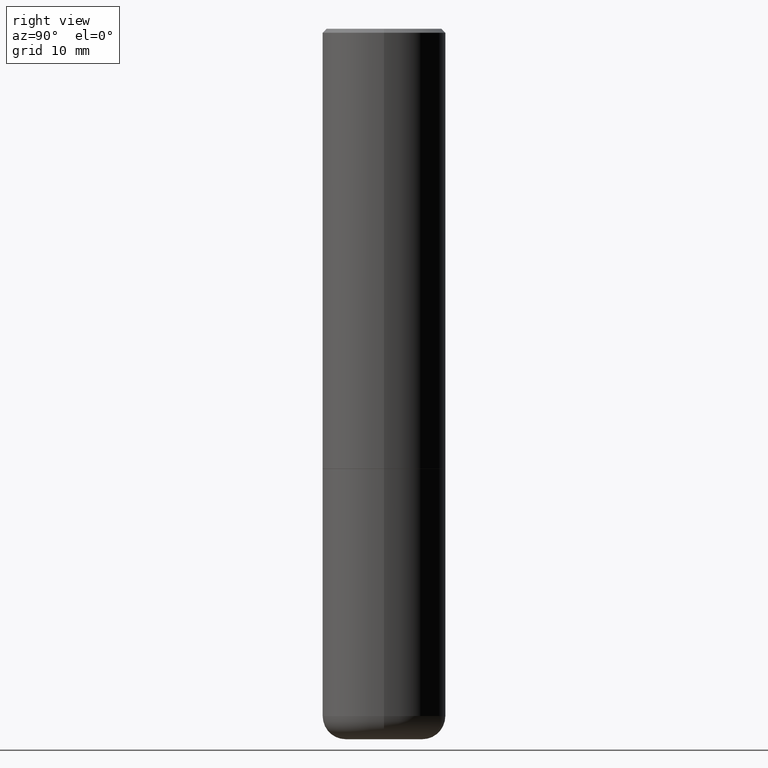
[diagram: clean part render]
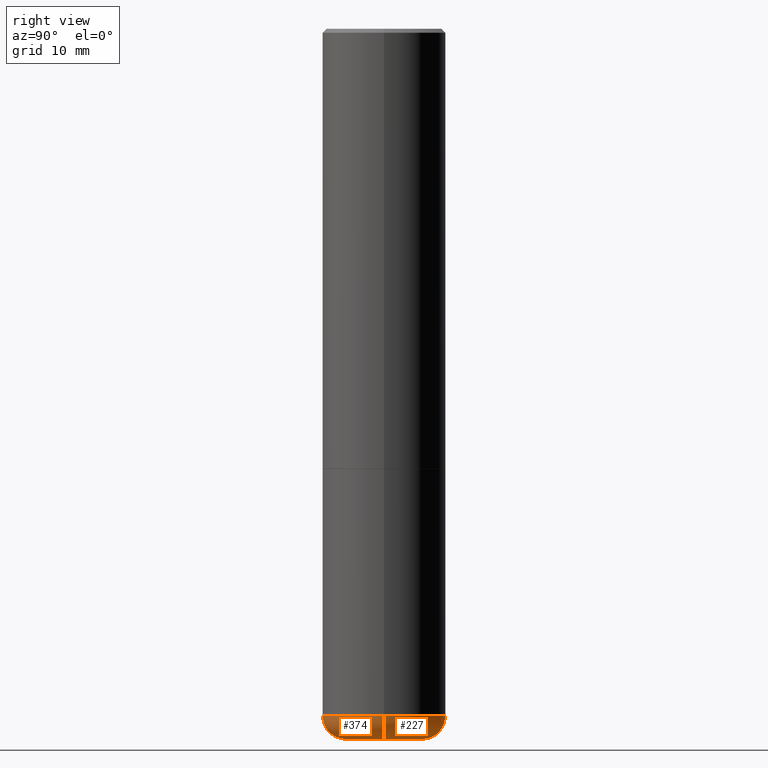
[diagram: same view with one multi-face feature highlighted, each face labeled with its STEP entity id]
A machine part, right view. The highlighted faces form ONE feature: a constant-radius fillet chain: 2 tangent blend faces with common blend radius 2.9997 mm. The faces share edges in the B-rep.
Their STEP definitions:
[1] entity #227 (Torus):
#9 = DIRECTION ( 'NONE',  ( -2.445468806185136597E-29, 3.491481338843145583E-15, 1.000000000000000000 ) ) ;
#27 = CIRCLE ( 'NONE', #74, 0.1180999999999997191 ) ;
#42 = EDGE_CURVE ( 'NONE', #141, #104, #27, .T. ) ;
#43 = DIRECTION ( 'NONE',  ( 1.000000000000000000, -6.982962677686263555E-15, 0.000000000000000000 ) ) ;
#44 = DIRECTION ( 'NONE',  ( -1.000000000000000000, 7.105427357601005014E-15, 0.000000000000000000 ) ) ;
#53 = DIRECTION ( 'NONE',  ( 1.000000000000000000, -6.982962677686273021E-15, 0.000000000000000000 ) ) ;
#74 = AXIS2_PLACEMENT_3D ( 'NONE', #341, #334, #53 ) ;
#77 = DIRECTION ( 'NONE',  ( -2.445468806185136597E-29, 3.491481338843145583E-15, 1.000000000000000000 ) ) ;
#82 = ORIENTED_EDGE ( 'NONE', *, *, #249, .F. ) ;
#96 = CARTESIAN_POINT ( 'NONE',  ( 8.857488016002563354E-29, -1.264614540928987041E-14, -3.621999999999999442 ) ) ;
#104 = VERTEX_POINT ( 'NONE', #126 ) ;
#126 = CARTESIAN_POINT ( 'NONE',  ( 0.3149499999999998967, -1.443308555850978615E-14, -3.503899999999999793 ) ) ;
#127 = AXIS2_PLACEMENT_3D ( 'NONE', #172, #77, #282 ) ;
#129 = CARTESIAN_POINT ( 'NONE',  ( -0.3149499999999998967, -9.995947116896063452E-15, -3.503899999999999793 ) ) ;
#141 = VERTEX_POINT ( 'NONE', #342 ) ;
#142 = DIRECTION ( 'NONE',  ( 7.105427357601001859E-15, 1.000000000000000000, -3.491481338843145583E-15 ) ) ;
#172 = CARTESIAN_POINT ( 'NONE',  ( 8.568678149992099474E-29, -1.223380146317249786E-14, -3.503899999999999793 ) ) ;
#191 = CIRCLE ( 'NONE', #256, 0.1968500000000000250 ) ;
#206 = VERTEX_POINT ( 'NONE', #129 ) ;
#208 = ORIENTED_EDGE ( 'NONE', *, *, #365, .T. ) ;
#214 = EDGE_CURVE ( 'NONE', #141, #412, #191, .T. ) ;
#227 = ADVANCED_FACE ( 'NONE', ( #317 ), #397, .T. ) ;
#249 = EDGE_CURVE ( 'NONE', #104, #206, #318, .T. ) ;
#250 = CIRCLE ( 'NONE', #402, 0.1180999999999997191 ) ;
#253 = CARTESIAN_POINT ( 'NONE',  ( 8.568678149992099474E-29, -1.223380146317249786E-14, -3.503899999999999793 ) ) ;
#256 = AXIS2_PLACEMENT_3D ( 'NONE', #96, #399, #319 ) ;
#263 = CARTESIAN_POINT ( 'NONE',  ( -0.1968500000000000250, -1.062169457542108764E-14, -3.621999999999999442 ) ) ;
#282 = DIRECTION ( 'NONE',  ( 1.000000000000000000, -6.982962677686269866E-15, 4.883557194083114022E-29 ) ) ;
#298 = ORIENTED_EDGE ( 'NONE', *, *, #42, .F. ) ;
#317 = FACE_OUTER_BOUND ( 'NONE', #383, .T. ) ;
#318 = CIRCLE ( 'NONE', #344, 0.3149500000000000077 ) ;
#319 = DIRECTION ( 'NONE',  ( 1.000000000000000000, -6.982962677686267499E-15, 0.000000000000000000 ) ) ;
#332 = CARTESIAN_POINT ( 'NONE',  ( -0.1968500000000000250, -1.083509808782873928E-14, -3.503899999999999793 ) ) ;
#334 = DIRECTION ( 'NONE',  ( -6.982962677686266711E-15, -1.000000000000000000, 3.491481338843145583E-15 ) ) ;
#341 = CARTESIAN_POINT ( 'NONE',  ( 0.1968500000000000250, -1.360839766627503947E-14, -3.503899999999999793 ) ) ;
#342 = CARTESIAN_POINT ( 'NONE',  ( 0.1968500000000000250, -1.402074161239241202E-14, -3.621999999999999442 ) ) ;
#344 = AXIS2_PLACEMENT_3D ( 'NONE', #253, #9, #43 ) ;
#365 = EDGE_CURVE ( 'NONE', #412, #206, #250, .T. ) ;
#383 = EDGE_LOOP ( 'NONE', ( #407, #208, #82, #298 ) ) ;
#397 = TOROIDAL_SURFACE ( 'NONE', #127, 0.1968500000000000250, 0.1180999999999997468 ) ;
#399 = DIRECTION ( 'NONE',  ( -2.445468806185136597E-29, 3.491481338843145583E-15, 1.000000000000000000 ) ) ;
#402 = AXIS2_PLACEMENT_3D ( 'NONE', #332, #142, #44 ) ;
#407 = ORIENTED_EDGE ( 'NONE', *, *, #214, .T. ) ;
#412 = VERTEX_POINT ( 'NONE', #263 ) ;
[2] entity #374 (Torus):
#21 = DIRECTION ( 'NONE',  ( 1.000000000000000000, -6.982962677686267499E-15, 0.000000000000000000 ) ) ;
#27 = CIRCLE ( 'NONE', #74, 0.1180999999999997191 ) ;
#35 = CIRCLE ( 'NONE', #261, 0.1968500000000000250 ) ;
#42 = EDGE_CURVE ( 'NONE', #141, #104, #27, .T. ) ;
#44 = DIRECTION ( 'NONE',  ( -1.000000000000000000, 7.105427357601005014E-15, 0.000000000000000000 ) ) ;
#51 = DIRECTION ( 'NONE',  ( -2.445468806185136597E-29, 3.491481338843145583E-15, 1.000000000000000000 ) ) ;
#52 = ORIENTED_EDGE ( 'NONE', *, *, #42, .T. ) ;
#53 = DIRECTION ( 'NONE',  ( 1.000000000000000000, -6.982962677686273021E-15, 0.000000000000000000 ) ) ;
#56 = FACE_OUTER_BOUND ( 'NONE', #411, .T. ) ;
#73 = AXIS2_PLACEMENT_3D ( 'NONE', #417, #124, #241 ) ;
#74 = AXIS2_PLACEMENT_3D ( 'NONE', #341, #334, #53 ) ;
#89 = ORIENTED_EDGE ( 'NONE', *, *, #285, .F. ) ;
#97 = AXIS2_PLACEMENT_3D ( 'NONE', #259, #51, #373 ) ;
#104 = VERTEX_POINT ( 'NONE', #126 ) ;
#105 = CIRCLE ( 'NONE', #73, 0.3149500000000000077 ) ;
#124 = DIRECTION ( 'NONE',  ( -2.445468806185136597E-29, 3.491481338843145583E-15, 1.000000000000000000 ) ) ;
#126 = CARTESIAN_POINT ( 'NONE',  ( 0.3149499999999998967, -1.443308555850978615E-14, -3.503899999999999793 ) ) ;
#129 = CARTESIAN_POINT ( 'NONE',  ( -0.3149499999999998967, -9.995947116896063452E-15, -3.503899999999999793 ) ) ;
#135 = DIRECTION ( 'NONE',  ( -2.445468806185136597E-29, 3.491481338843145583E-15, 1.000000000000000000 ) ) ;
#141 = VERTEX_POINT ( 'NONE', #342 ) ;
#142 = DIRECTION ( 'NONE',  ( 7.105427357601001859E-15, 1.000000000000000000, -3.491481338843145583E-15 ) ) ;
#178 = ORIENTED_EDGE ( 'NONE', *, *, #359, .T. ) ;
#204 = ORIENTED_EDGE ( 'NONE', *, *, #365, .F. ) ;
#206 = VERTEX_POINT ( 'NONE', #129 ) ;
#212 = TOROIDAL_SURFACE ( 'NONE', #97, 0.1968500000000000250, 0.1180999999999997468 ) ;
#241 = DIRECTION ( 'NONE',  ( 1.000000000000000000, -6.982962677686263555E-15, 0.000000000000000000 ) ) ;
#250 = CIRCLE ( 'NONE', #402, 0.1180999999999997191 ) ;
#259 = CARTESIAN_POINT ( 'NONE',  ( 8.568678149992099474E-29, -1.223380146317249786E-14, -3.503899999999999793 ) ) ;
#261 = AXIS2_PLACEMENT_3D ( 'NONE', #295, #135, #21 ) ;
#263 = CARTESIAN_POINT ( 'NONE',  ( -0.1968500000000000250, -1.062169457542108764E-14, -3.621999999999999442 ) ) ;
#285 = EDGE_CURVE ( 'NONE', #206, #104, #105, .T. ) ;
#295 = CARTESIAN_POINT ( 'NONE',  ( 8.857488016002563354E-29, -1.264614540928987041E-14, -3.621999999999999442 ) ) ;
#332 = CARTESIAN_POINT ( 'NONE',  ( -0.1968500000000000250, -1.083509808782873928E-14, -3.503899999999999793 ) ) ;
#334 = DIRECTION ( 'NONE',  ( -6.982962677686266711E-15, -1.000000000000000000, 3.491481338843145583E-15 ) ) ;
#341 = CARTESIAN_POINT ( 'NONE',  ( 0.1968500000000000250, -1.360839766627503947E-14, -3.503899999999999793 ) ) ;
#342 = CARTESIAN_POINT ( 'NONE',  ( 0.1968500000000000250, -1.402074161239241202E-14, -3.621999999999999442 ) ) ;
#359 = EDGE_CURVE ( 'NONE', #412, #141, #35, .T. ) ;
#365 = EDGE_CURVE ( 'NONE', #412, #206, #250, .T. ) ;
#373 = DIRECTION ( 'NONE',  ( 1.000000000000000000, -6.982962677686269866E-15, 4.883557194083114022E-29 ) ) ;
#374 = ADVANCED_FACE ( 'NONE', ( #56 ), #212, .T. ) ;
#402 = AXIS2_PLACEMENT_3D ( 'NONE', #332, #142, #44 ) ;
#411 = EDGE_LOOP ( 'NONE', ( #204, #178, #52, #89 ) ) ;
#412 = VERTEX_POINT ( 'NONE', #263 ) ;
#417 = CARTESIAN_POINT ( 'NONE',  ( 8.568678149992099474E-29, -1.223380146317249786E-14, -3.503899999999999793 ) ) ;